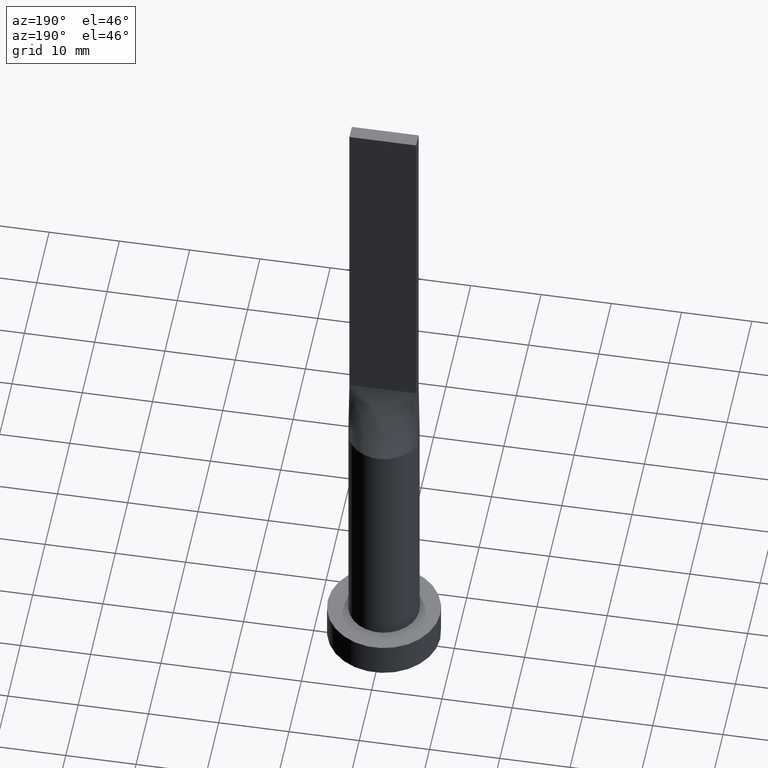
[diagram: clean part render]
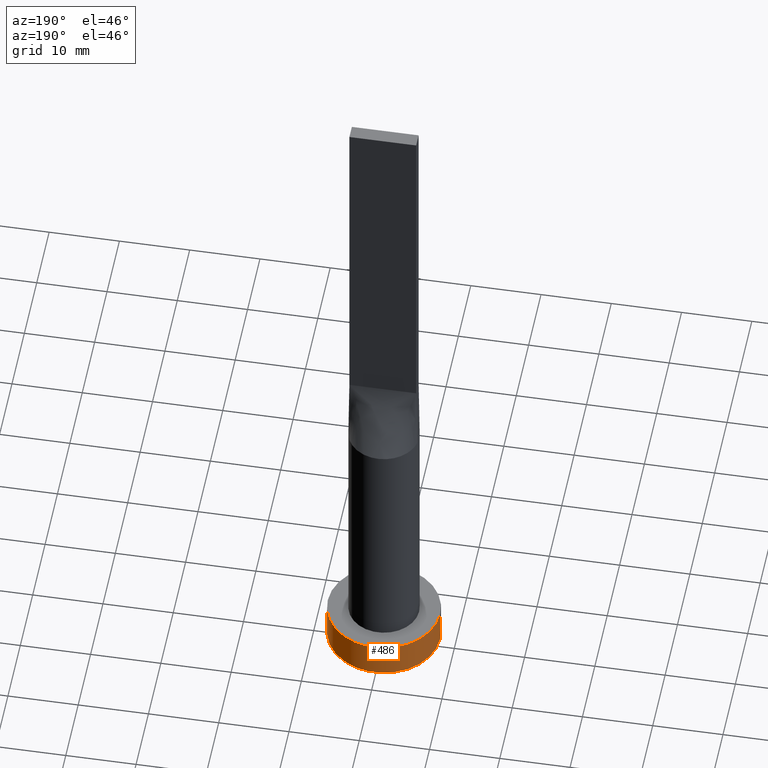
[diagram: same view with one face highlighted and labeled with its STEP entity id]
A machine part, auxiliary view. The second image highlights one B-rep face of the part: STEP entity #486.
In plain terms, the highlighted cylindrical surface (partial cylindrical patch) has radius 8 mm, axis along (-0, -0, -1).
Its self-contained STEP definition (entity closure, byte-faithful):
#2 = CARTESIAN_POINT ( 'NONE',  ( 8.000000000000000000, 9.797174393178825657E-16, 5.000000000000000000 ) ) ;
#30 = AXIS2_PLACEMENT_3D ( 'NONE', #352, #540, #230 ) ;
#64 = VERTEX_POINT ( 'NONE', #170 ) ;
#88 = CARTESIAN_POINT ( 'NONE',  ( -8.000000000000000000, 0.000000000000000000, 5.000000000000000000 ) ) ;
#92 = VERTEX_POINT ( 'NONE', #88 ) ;
#106 = DIRECTION ( 'NONE',  ( 0.000000000000000000, 0.000000000000000000, 1.000000000000000000 ) ) ;
#170 = CARTESIAN_POINT ( 'NONE',  ( -8.000000000000000000, 0.000000000000000000, 0.000000000000000000 ) ) ;
#197 = DIRECTION ( 'NONE',  ( 1.000000000000000000, 0.000000000000000000, 0.000000000000000000 ) ) ;
#211 = ORIENTED_EDGE ( 'NONE', *, *, #544, .T. ) ;
#213 = LINE ( 'NONE', #356, #253 ) ;
#223 = EDGE_CURVE ( 'NONE', #263, #92, #426, .T. ) ;
#230 = DIRECTION ( 'NONE',  ( 1.000000000000000000, 0.000000000000000000, 0.000000000000000000 ) ) ;
#239 = VERTEX_POINT ( 'NONE', #421 ) ;
#251 = ORIENTED_EDGE ( 'NONE', *, *, #537, .T. ) ;
#253 = VECTOR ( 'NONE', #274, 1000.000000000000000 ) ;
#263 = VERTEX_POINT ( 'NONE', #2 ) ;
#274 = DIRECTION ( 'NONE',  ( -0.000000000000000000, -0.000000000000000000, -1.000000000000000000 ) ) ;
#290 = FACE_OUTER_BOUND ( 'NONE', #447, .T. ) ;
#292 = AXIS2_PLACEMENT_3D ( 'NONE', #520, #335, #345 ) ;
#297 = CARTESIAN_POINT ( 'NONE',  ( 8.000000000000000000, 9.797174393178825657E-16, 5.000000000000000000 ) ) ;
#335 = DIRECTION ( 'NONE',  ( -0.000000000000000000, -0.000000000000000000, -1.000000000000000000 ) ) ;
#345 = DIRECTION ( 'NONE',  ( -1.000000000000000000, 0.000000000000000000, 0.000000000000000000 ) ) ;
#352 = CARTESIAN_POINT ( 'NONE',  ( 0.000000000000000000, 0.000000000000000000, 5.000000000000000000 ) ) ;
#356 = CARTESIAN_POINT ( 'NONE',  ( -8.000000000000000000, 0.000000000000000000, 5.000000000000000000 ) ) ;
#378 = DIRECTION ( 'NONE',  ( -0.000000000000000000, -0.000000000000000000, -1.000000000000000000 ) ) ;
#381 = CYLINDRICAL_SURFACE ( 'NONE', #292, 8.000000000000000000 ) ;
#410 = CIRCLE ( 'NONE', #466, 8.000000000000000000 ) ;
#418 = ORIENTED_EDGE ( 'NONE', *, *, #445, .F. ) ;
#421 = CARTESIAN_POINT ( 'NONE',  ( 8.000000000000000000, 9.797174393178825657E-16, 0.000000000000000000 ) ) ;
#426 = CIRCLE ( 'NONE', #30, 8.000000000000000000 ) ;
#445 = EDGE_CURVE ( 'NONE', #92, #64, #213, .T. ) ;
#447 = EDGE_LOOP ( 'NONE', ( #531, #211, #251, #418 ) ) ;
#466 = AXIS2_PLACEMENT_3D ( 'NONE', #524, #106, #197 ) ;
#483 = LINE ( 'NONE', #297, #573 ) ;
#486 = ADVANCED_FACE ( 'NONE', ( #290 ), #381, .T. ) ;
#520 = CARTESIAN_POINT ( 'NONE',  ( 0.000000000000000000, 0.000000000000000000, 5.000000000000000000 ) ) ;
#524 = CARTESIAN_POINT ( 'NONE',  ( 0.000000000000000000, 0.000000000000000000, 0.000000000000000000 ) ) ;
#531 = ORIENTED_EDGE ( 'NONE', *, *, #223, .F. ) ;
#537 = EDGE_CURVE ( 'NONE', #239, #64, #410, .T. ) ;
#540 = DIRECTION ( 'NONE',  ( 0.000000000000000000, 0.000000000000000000, 1.000000000000000000 ) ) ;
#544 = EDGE_CURVE ( 'NONE', #263, #239, #483, .T. ) ;
#573 = VECTOR ( 'NONE', #378, 1000.000000000000000 ) ;